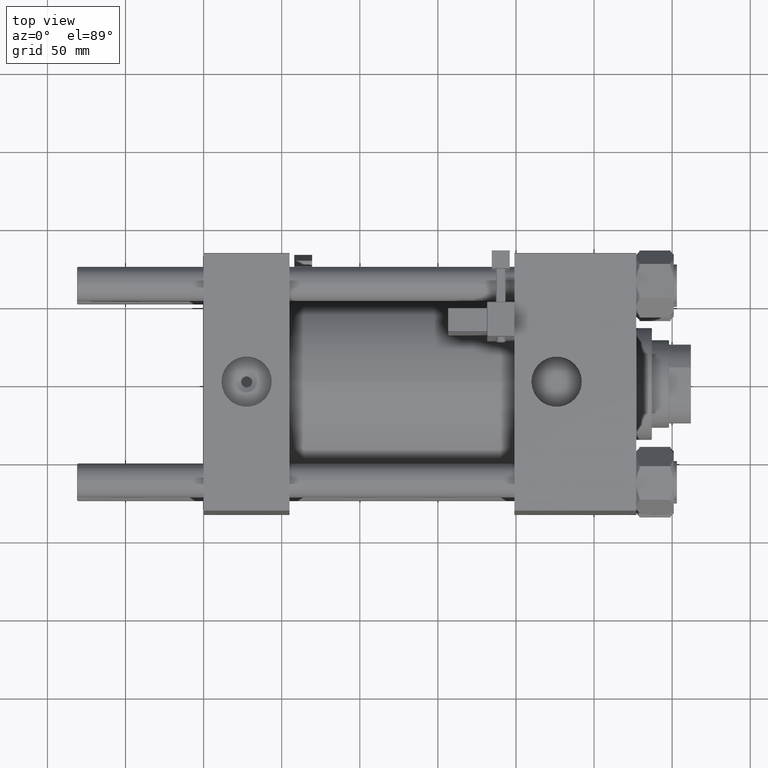
[diagram: clean part render]
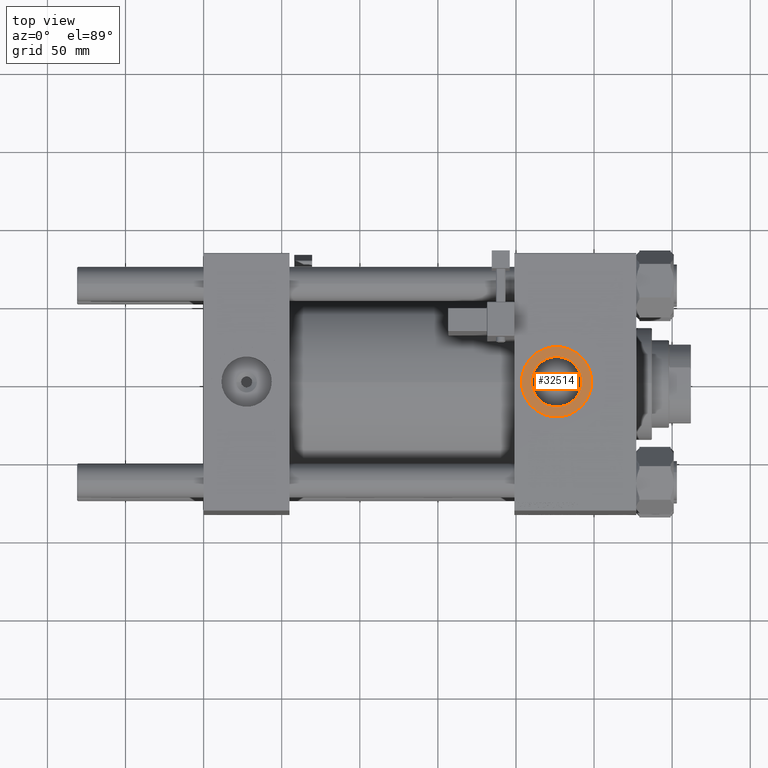
[diagram: same view with one face highlighted and labeled with its STEP entity id]
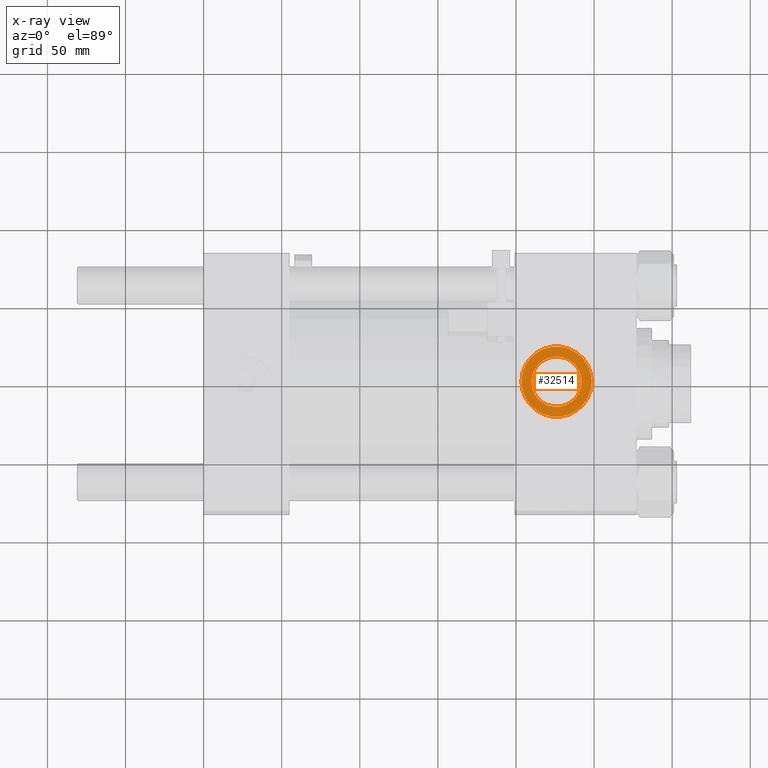
[diagram: x-ray of the same camera — body ghosted, the highlighted face saturated]
A machine part, top view. The second image highlights one B-rep face of the part: STEP entity #32514.
The next image is the same camera in x-ray: the body ghosted, the highlighted face saturated — about 0% of this face is hidden behind the body in this view.
In plain terms, the highlighted planar face has unit normal (0, 0, 1).
Its self-contained STEP definition (entity closure, byte-faithful):
#868 = EDGE_CURVE ( 'NONE', #31351, #8699, #35017, .T. ) ;
#2304 = DIRECTION ( 'NONE',  ( -0.000000000000000000, -0.000000000000000000, -1.000000000000000000 ) ) ;
#3607 = AXIS2_PLACEMENT_3D ( 'NONE', #26298, #2304, #27087 ) ;
#8219 = DIRECTION ( 'NONE',  ( 1.000000000000000000, 0.000000000000000000, 0.000000000000000000 ) ) ;
#8699 = VERTEX_POINT ( 'NONE', #15895 ) ;
#9508 = AXIS2_PLACEMENT_3D ( 'NONE', #27390, #39369, #19403 ) ;
#9739 = EDGE_CURVE ( 'NONE', #52513, #28424, #45389, .T. ) ;
#11417 = ORIENTED_EDGE ( 'NONE', *, *, #39471, .T. ) ;
#12198 = ORIENTED_EDGE ( 'NONE', *, *, #46614, .T. ) ;
#15387 = DIRECTION ( 'NONE',  ( 0.000000000000000000, 0.000000000000000000, 1.000000000000000000 ) ) ;
#15895 = CARTESIAN_POINT ( 'NONE',  ( 209.8799999999999955, -1.387778780781445676E-14, 82.29999999999998295 ) ) ;
#18061 = CIRCLE ( 'NONE', #3607, 16.11999999999999389 ) ;
#18255 = CARTESIAN_POINT ( 'NONE',  ( 203.5000000000000000, -1.112233250973291592E-14, 82.29999999999998295 ) ) ;
#19066 = ORIENTED_EDGE ( 'NONE', *, *, #868, .T. ) ;
#19403 = DIRECTION ( 'NONE',  ( 1.000000000000000000, 0.000000000000000000, 0.000000000000000000 ) ) ;
#20726 = DIRECTION ( 'NONE',  ( 0.000000000000000000, 0.000000000000000000, 1.000000000000000000 ) ) ;
#26298 = CARTESIAN_POINT ( 'NONE',  ( 225.9999999999999716, -1.387778780781445676E-14, 82.29999999999998295 ) ) ;
#27087 = DIRECTION ( 'NONE',  ( 1.000000000000000000, 0.000000000000000000, 0.000000000000000000 ) ) ;
#27390 = CARTESIAN_POINT ( 'NONE',  ( 225.9999999999999716, -1.387778780781445676E-14, 82.29999999999998295 ) ) ;
#28085 = DIRECTION ( 'NONE',  ( 1.000000000000000000, 0.000000000000000000, -0.000000000000000000 ) ) ;
#28424 = VERTEX_POINT ( 'NONE', #18255 ) ;
#28455 = CARTESIAN_POINT ( 'NONE',  ( 225.9999999999999716, -1.387778780781445676E-14, 82.29999999999998295 ) ) ;
#29384 = CIRCLE ( 'NONE', #42973, 22.49999999999999289 ) ;
#30942 = AXIS2_PLACEMENT_3D ( 'NONE', #28455, #20726, #8219 ) ;
#31351 = VERTEX_POINT ( 'NONE', #37567 ) ;
#31817 = DIRECTION ( 'NONE',  ( 0.000000000000000000, 0.000000000000000000, 1.000000000000000000 ) ) ;
#32514 = ADVANCED_FACE ( 'NONE', ( #47771, #52030 ), #52294, .T. ) ;
#35017 = CIRCLE ( 'NONE', #9508, 16.11999999999999389 ) ;
#35085 = ORIENTED_EDGE ( 'NONE', *, *, #9739, .T. ) ;
#35626 = CARTESIAN_POINT ( 'NONE',  ( 225.9999999999999716, -1.387778780781445676E-14, 82.29999999999998295 ) ) ;
#37456 = DIRECTION ( 'NONE',  ( 1.000000000000000000, 0.000000000000000000, 0.000000000000000000 ) ) ;
#37567 = CARTESIAN_POINT ( 'NONE',  ( 242.1199999999999761, -1.190365716758892667E-14, 82.29999999999998295 ) ) ;
#38869 = EDGE_LOOP ( 'NONE', ( #35085, #12198 ) ) ;
#39369 = DIRECTION ( 'NONE',  ( -0.000000000000000000, -0.000000000000000000, -1.000000000000000000 ) ) ;
#39471 = EDGE_CURVE ( 'NONE', #8699, #31351, #18061, .T. ) ;
#42566 = AXIS2_PLACEMENT_3D ( 'NONE', #43531, #31817, #28085 ) ;
#42973 = AXIS2_PLACEMENT_3D ( 'NONE', #35626, #15387, #37456 ) ;
#43531 = CARTESIAN_POINT ( 'NONE',  ( 225.9999999999999716, -1.387778780781445676E-14, 82.29999999999998295 ) ) ;
#45389 = CIRCLE ( 'NONE', #30942, 22.49999999999999289 ) ;
#46614 = EDGE_CURVE ( 'NONE', #28424, #52513, #29384, .T. ) ;
#47771 = FACE_BOUND ( 'NONE', #49304, .T. ) ;
#49304 = EDGE_LOOP ( 'NONE', ( #11417, #19066 ) ) ;
#50542 = CARTESIAN_POINT ( 'NONE',  ( 248.4999999999999716, -1.387778780781445676E-14, 82.29999999999998295 ) ) ;
#52030 = FACE_OUTER_BOUND ( 'NONE', #38869, .T. ) ;
#52294 = PLANE ( 'NONE',  #42566 ) ;
#52513 = VERTEX_POINT ( 'NONE', #50542 ) ;